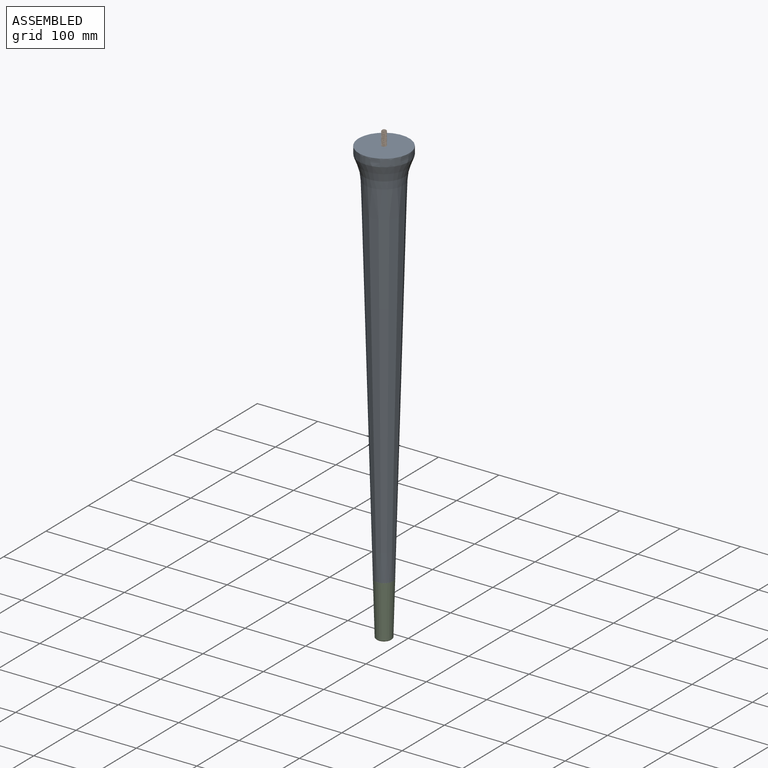
[diagram: assembled view]
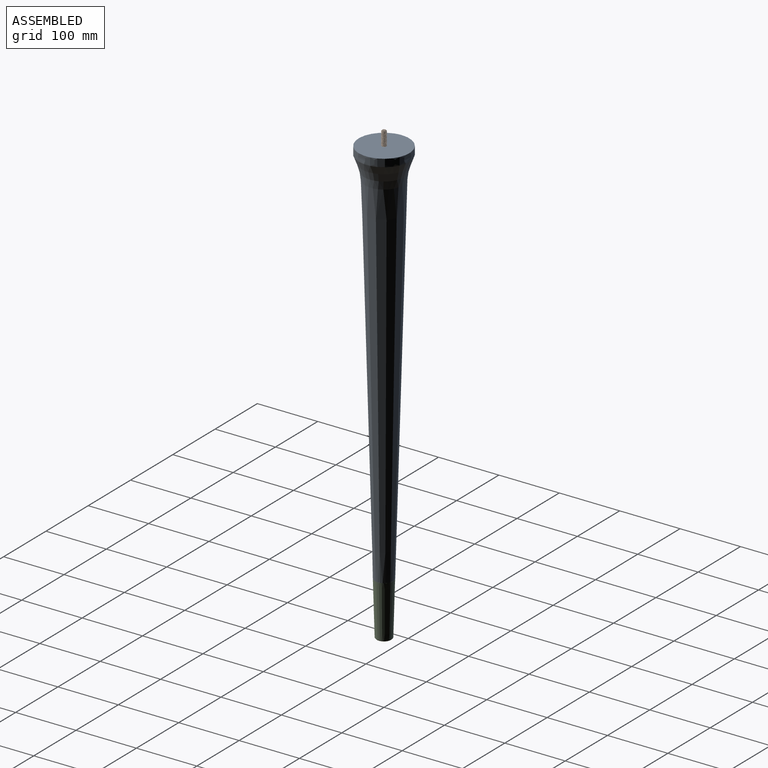
[diagram: assembled view, second angle]
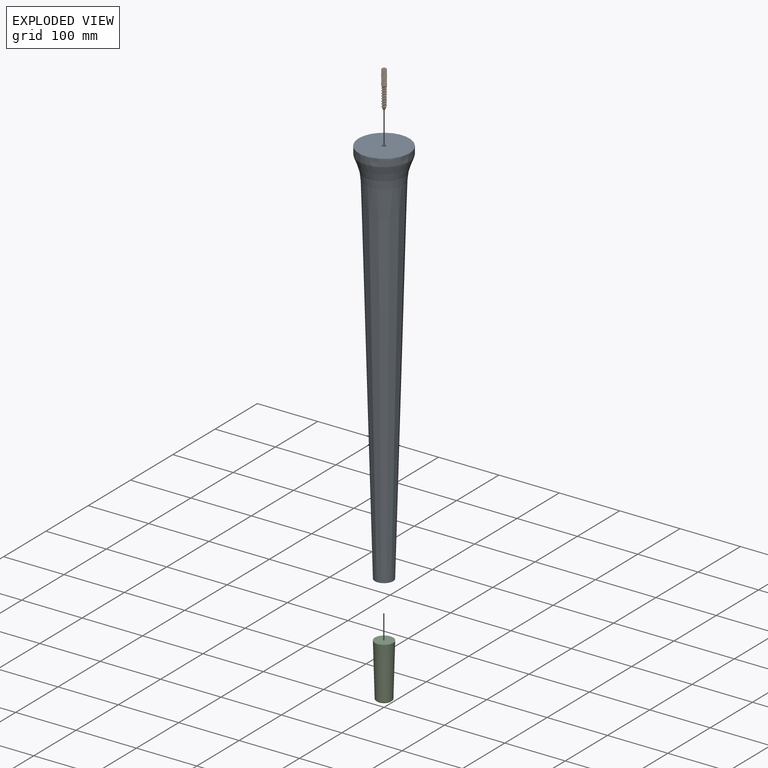
[diagram: exploded view]
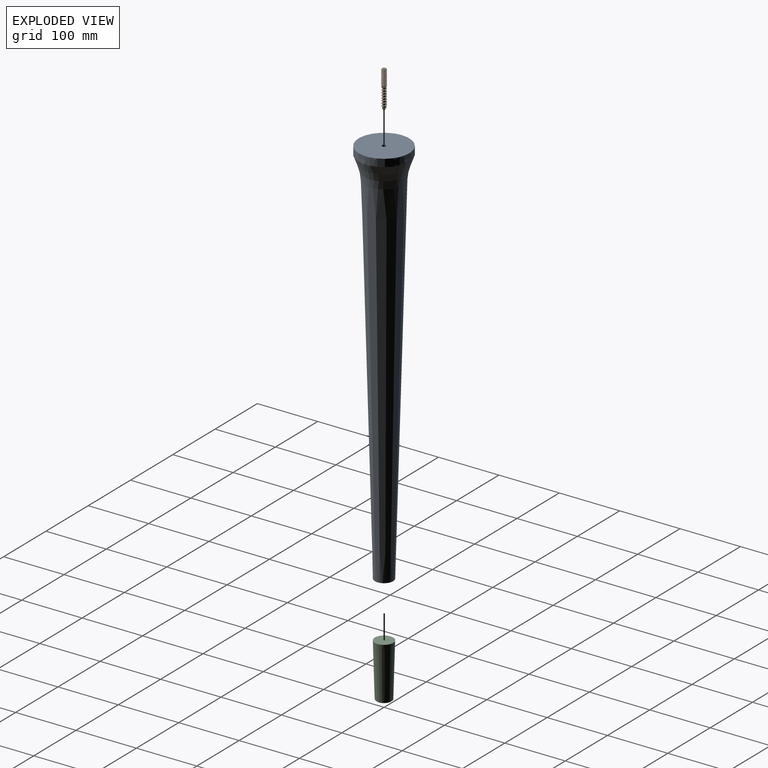
[diagram: exploded view, second angle]
ASSEMBLY  parts=3 mates=2
PART A: 7 faces, bbox 83.8x83.8x647.7 mm
  f0: cone r=31.75mm half-angle=1.6deg, axis (0,0,1), area 88018.1mm2, adj f1,f6
  f1: bspline ~83.82x83.82mm, area 8884.2mm2, adj f0,f2
  f2: extruded ~83.82x83.82mm, area 3344.3mm2, adj f1,f3
  f3: plane 83.82x83.82mm, normal (0,0,1), area 5484.8mm2, adj f2,f5
  f4: cone r=0mm half-angle=59deg, axis (0,0,1), area 39mm2, adj f5
  f5: cylinder r=3.26mm len=38.1mm, axis (0,0,1), area 781.3mm2, adj f3,f4
  f6: plane 30.34x30.34mm, normal (0,0,-1), area 722.9mm2, adj f0
PART B: 14 faces, bbox 8.1x63.9x8.1 mm
  f0: cylinder r=2.38mm len=31.69mm, axis (0,1,0), area 259mm2, adj f1,f3,f4,f5
  f1: bspline ~34.76x7.92mm, area 284.3mm2, adj f0,f2,f4,f5
  f2: cylinder r=3.96mm len=32mm, axis (0,1,0), area 65.1mm2, adj f1,f3,f4,f12
  f3: bspline ~36.07x7.92mm, area 284.7mm2, adj f0,f2,f4,f5
  f4: cone r=0mm half-angle=33deg, axis (0,1,0), area 47.1mm2, adj f0,f1,f2,f3
  f5: cone r=3.96mm half-angle=30deg, axis (0,1,0), area 47.3mm2, adj f0,f1,f3,f8,f12
  f6: cone r=2.83mm half-angle=45deg, axis (0,-1,0), area 15.6mm2, adj f7,f9,f10,f13
  f7: cone r=2.83mm half-angle=45deg, axis (0,-1,0), area 3.7mm2, adj f6,f8,f9,f11
  f8: cylinder r=3.96mm len=24.27mm, axis (0,1,0), area 75.7mm2, adj f5,f7,f9,f11
  f9: bspline ~26.33x8.08mm, area 382.2mm2, adj f6,f7,f8,f10,f12
  f10: cylinder r=3.05mm len=24.27mm, axis (0,-1,0), area 58.6mm2, adj f6,f9,f11,f12
  f11: bspline ~25.44x8.08mm, area 402.2mm2, adj f7,f8,f10,f12
  f12: cone r=3.96mm half-angle=45deg, axis (0,-1,0), area 14.7mm2, adj f2,f5,f9,f10,f11
  f13: plane 5.67x5.67mm, normal (0,1,0), area 25.2mm2, adj f6
PART C: 4 faces, bbox 30.3x30.3x88.9 mm
  f0: plane 22.86x22.86mm, normal (0,0,-1), area 410.4mm2, adj f1
  f1: cone r=11.43mm half-angle=45.8deg, axis (0,0,1), area 138.2mm2, adj f0,f2
  f2: cone r=31.75mm half-angle=1.6deg, axis (0,0,1), area 7685.1mm2, adj f1,f3
  f3: plane 30.34x30.34mm, normal (0,0,1), area 722.9mm2, adj f2
PLACE A t=(406.4,136.53,0)mm
PLACE B rot(axis=(1,0,0),90deg) t=(0,0,-40.06)mm
PLACE C t=(406.4,136.53,0)mm
MATE fastened C.f1 <-> A.f0  axis (0,0,1) through (0,0,-647.7)mm
MATE fastened B.f4 <-> A.f0  axis (0,0,1) through (0,0,-40.06)mm
